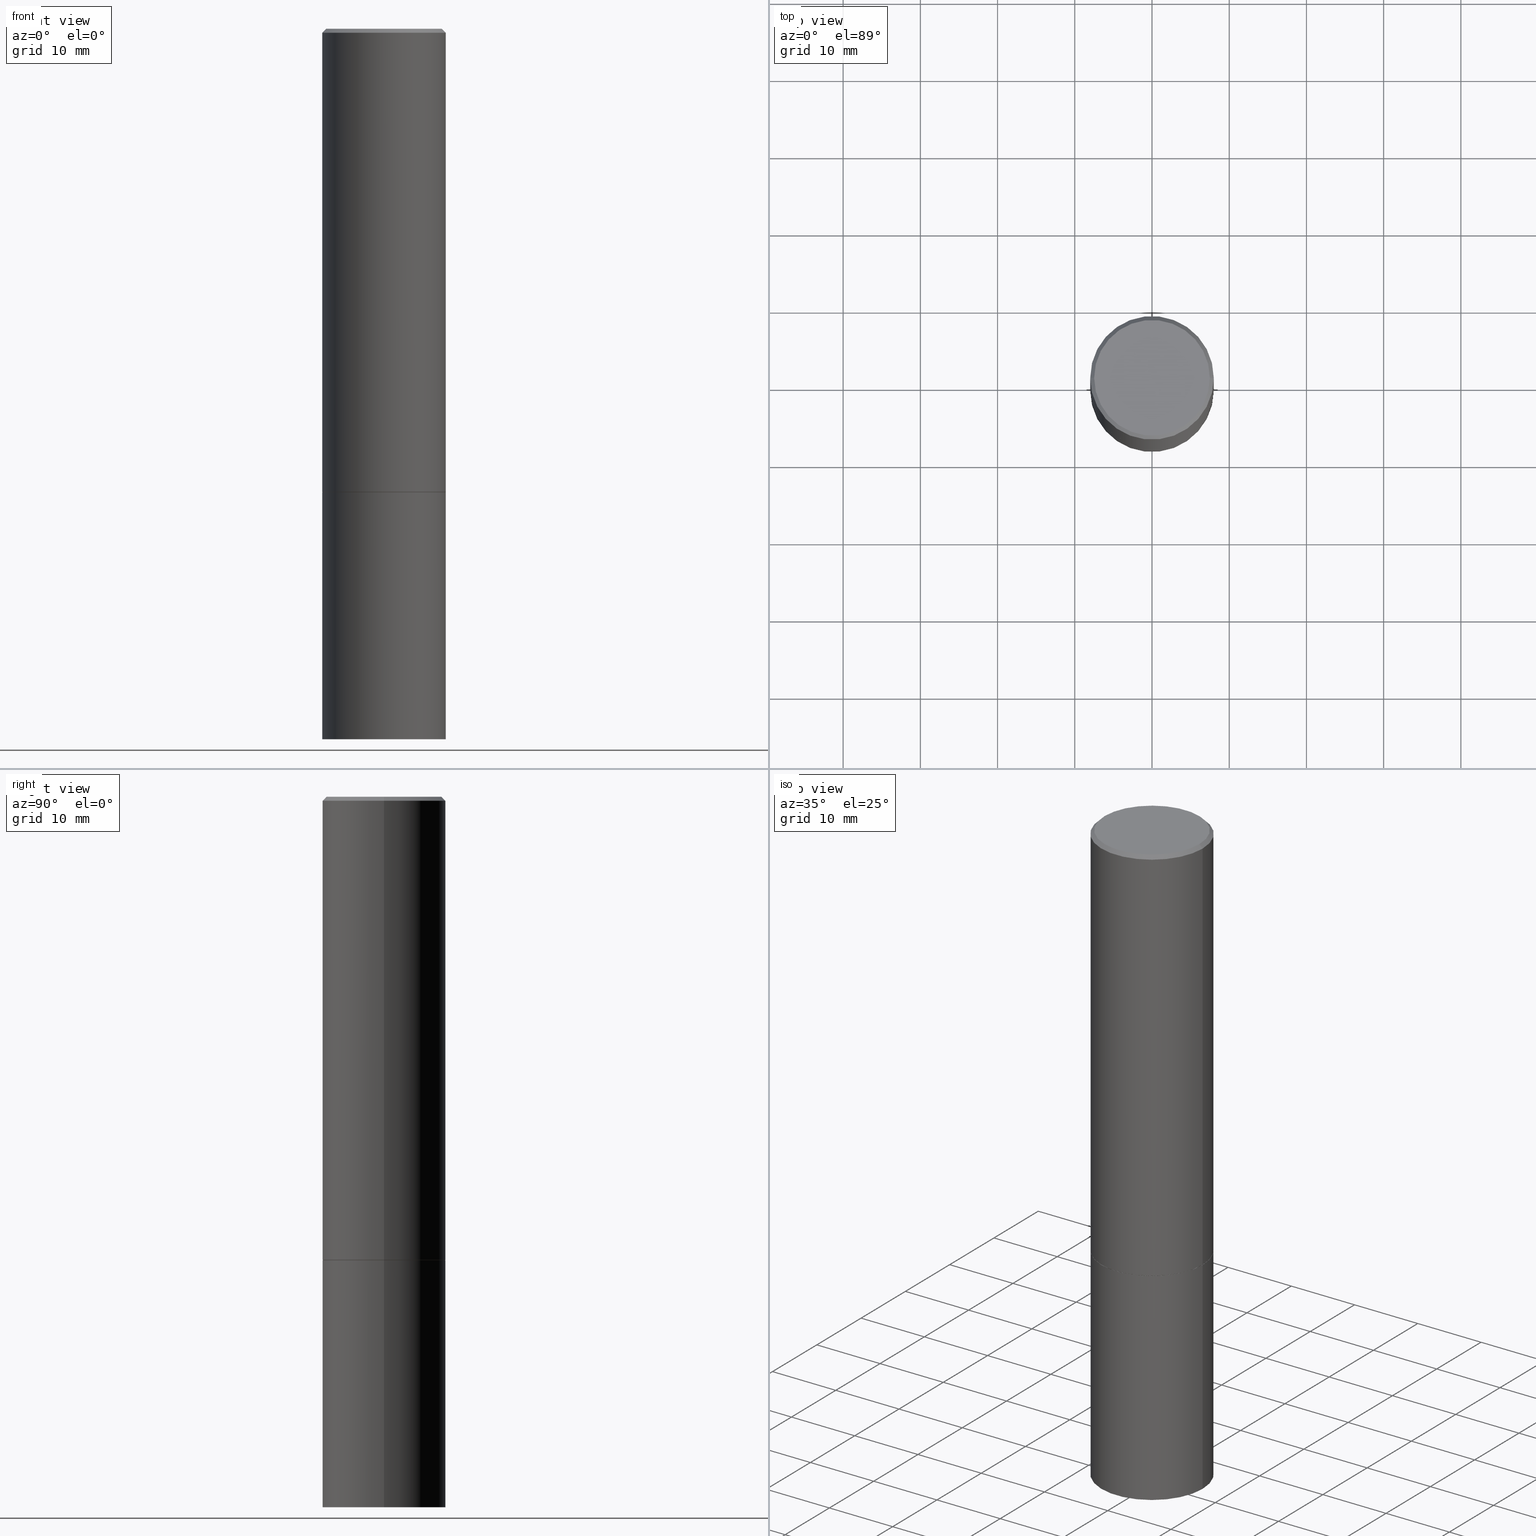
[diagram: canonical four-view strip — front | top / right | iso, engineering-drawing reading convention]
A machine part, canonical four-view strip (front | top / right | iso — engineering-drawing reading convention). The complete STEP part file that produces these views, byte-faithful:
ISO-10303-21;
HEADER;
FILE_DESCRIPTION (( 'STEP AP203' ),
    '1' );
FILE_NAME ('49671.STEP',
    '2024-02-29T01:01:01',
    ( '' ),
    ( '' ),
    'SwSTEP 2.0',
    'SolidWorks 2023',
    '' );
FILE_SCHEMA (( 'CONFIG_CONTROL_DESIGN' ));
ENDSEC;

DATA;
#1 = ORIENTED_EDGE ( 'NONE', *, *, #361, .T. ) ;
#2 = COORDINATED_UNIVERSAL_TIME_OFFSET ( 5, 0, .BEHIND. ) ;
#3 = VERTEX_POINT ( 'NONE', #155 ) ;
#4 = APPROVAL_ROLE ( '' ) ;
#5 = CARTESIAN_POINT ( 'NONE',  ( 5.774240945164344150E-29, -8.244085737276433464E-15, -2.361199999999999743 ) ) ;
#6 = VERTEX_POINT ( 'NONE', #11 ) ;
#7 = AXIS2_PLACEMENT_3D ( 'NONE', #168, #202, #135 ) ;
#8 = CONICAL_SURFACE ( 'NONE', #150, 0.3149499999999997302, 0.7853981633974471688 ) ;
#9 = EDGE_CURVE ( 'NONE', #113, #177, #158, .T. ) ;
#10 = ORIENTED_EDGE ( 'NONE', *, *, #241, .F. ) ;
#11 = CARTESIAN_POINT ( 'NONE',  ( 0.3149500000000000077, -1.044686131395256792E-14, -2.362199999999999633 ) ) ;
#12 = EDGE_LOOP ( 'NONE', ( #32, #320, #73, #10 ) ) ;
#13 = CONICAL_SURFACE ( 'NONE', #215, 0.3149499999999997302, 0.7853981633974471688 ) ;
#14 = CALENDAR_DATE ( 2024, 28, 2 ) ;
#15 = DIRECTION ( 'NONE',  ( -2.445468806185136597E-29, 3.491481338843145583E-15, 1.000000000000000000 ) ) ;
#16 = DATE_AND_TIME ( #14, #351 ) ;
#17 = CARTESIAN_POINT ( 'NONE',  ( 0.3139500000000000624, -1.043987835127488191E-14, -2.362199999999999633 ) ) ;
#18 = PLANE ( 'NONE',  #358 ) ;
#19 = DIRECTION ( 'NONE',  ( 2.445468806185136597E-29, -3.491481338843145583E-15, -1.000000000000000000 ) ) ;
#20 = AXIS2_PLACEMENT_3D ( 'NONE', #240, #94, #41 ) ;
#21 = CARTESIAN_POINT ( 'NONE',  ( 0.000000000000000000, 0.000000000000000000, 0.000000000000000000 ) ) ;
#22 = CARTESIAN_POINT ( 'NONE',  ( -0.3149499999999998967, 2.237854346276434801E-15, -1.549218606675782116E-29 ) ) ;
#23 = APPROVAL ( #366, 'UNSPECIFIED' ) ;
#24 = FACE_OUTER_BOUND ( 'NONE', #210, .T. ) ;
#25 = CIRCLE ( 'NONE', #314, 0.3149499999999997302 ) ;
#26 = DIRECTION ( 'NONE',  ( 2.438088387897960049E-29, -3.491481338843145188E-15, -1.000000000000000000 ) ) ;
#27 = EDGE_CURVE ( 'NONE', #316, #259, #249, .T. ) ;
#28 = EDGE_LOOP ( 'NONE', ( #209, #178, #350, #59 ) ) ;
#29 = COORDINATED_UNIVERSAL_TIME_OFFSET ( 5, 0, .BEHIND. ) ;
#30 = ORIENTED_EDGE ( 'NONE', *, *, #205, .T. ) ;
#31 = DATE_AND_TIME ( #236, #339 ) ;
#32 = ORIENTED_EDGE ( 'NONE', *, *, #173, .F. ) ;
#33 =( CONVERSION_BASED_UNIT ( 'INCH', #85 ) LENGTH_UNIT ( ) NAMED_UNIT ( #80 ) );
#34 = VERTEX_POINT ( 'NONE', #246 ) ;
#35 = APPROVAL_DATE_TIME ( #71, #263 ) ;
#36 = VERTEX_POINT ( 'NONE', #72 ) ;
#37 = VECTOR ( 'NONE', #184, 39.37007874015748143 ) ;
#38 = AXIS2_PLACEMENT_3D ( 'NONE', #110, #203, #317 ) ;
#39 = LINE ( 'NONE', #327, #297 ) ;
#40 = DATE_AND_TIME ( #353, #112 ) ;
#41 = DIRECTION ( 'NONE',  ( 1.000000000000000000, -6.982962677686268288E-15, 0.000000000000000000 ) ) ;
#42 = VERTEX_POINT ( 'NONE', #354 ) ;
#43 = PRODUCT_DEFINITION_FORMATION_WITH_SPECIFIED_SOURCE ( 'ANY', '', #322, .NOT_KNOWN. ) ;
#44 = PERSON_AND_ORGANIZATION ( #282, #243 ) ;
#45 = EDGE_LOOP ( 'NONE', ( #180, #329 ) ) ;
#46 = CARTESIAN_POINT ( 'NONE',  ( -1.043851414335219820E-46, 1.490343170380447200E-32, 4.268512490100411279E-18 ) ) ;
#47 = DIRECTION ( 'NONE',  ( -2.445468806185136877E-29, 3.491481338843145188E-15, 1.000000000000000000 ) ) ;
#48 = CIRCLE ( 'NONE', #226, 0.3149500000000000077 ) ;
#49 = AXIS2_PLACEMENT_3D ( 'NONE', #109, #229, #134 ) ;
#50 = DIRECTION ( 'NONE',  ( -1.000000000000000000, 6.982962677686265922E-15, -4.876176775795935793E-29 ) ) ;
#51 = CYLINDRICAL_SURFACE ( 'NONE', #49, 0.3149500000000000077 ) ;
#52 = EDGE_CURVE ( 'NONE', #36, #177, #195, .T. ) ;
#53 = LINE ( 'NONE', #165, #277 ) ;
#54 = CYLINDRICAL_SURFACE ( 'NONE', #141, 0.3149500000000000077 ) ;
#55 = APPLICATION_PROTOCOL_DEFINITION ( 'international standard', 'config_control_design', 1994, #260 ) ;
#56 = ORIENTED_EDGE ( 'NONE', *, *, #290, .T. ) ;
#57 = ORIENTED_EDGE ( 'NONE', *, *, #241, .T. ) ;
#58 =( NAMED_UNIT ( * ) SI_UNIT ( $, .STERADIAN. ) SOLID_ANGLE_UNIT ( ) );
#59 = ORIENTED_EDGE ( 'NONE', *, *, #52, .F. ) ;
#60 = APPROVAL_PERSON_ORGANIZATION ( #44, #145, #239 ) ;
#61 = FACE_OUTER_BOUND ( 'NONE', #88, .T. ) ;
#62 = MECHANICAL_CONTEXT ( 'NONE', #200, 'mechanical' ) ;
#63 = CALENDAR_DATE ( 2024, 28, 2 ) ;
#64 = DIRECTION ( 'NONE',  ( 1.000000000000000000, -6.982962677686263555E-15, 0.000000000000000000 ) ) ;
#65 = AXIS2_PLACEMENT_3D ( 'NONE', #104, #75, #161 ) ;
#66 = APPROVAL_DATE_TIME ( #16, #145 ) ;
#67 = VECTOR ( 'NONE', #360, 39.37007874015748143 ) ;
#68 = CARTESIAN_POINT ( 'NONE',  ( -0.3139500000000000624, -6.011529845348220670E-15, -2.362199999999999633 ) ) ;
#69 = PERSON_AND_ORGANIZATION_ROLE ( 'design_supplier' ) ;
#70 = CARTESIAN_POINT ( 'NONE',  ( -0.3149499999999997302, 2.129454468560424601E-15, -0.02000000000000007327 ) ) ;
#71 = DATE_AND_TIME ( #63, #176 ) ;
#72 = CARTESIAN_POINT ( 'NONE',  ( -0.3149500000000000077, -1.919103335750211213E-15, -2.361199999999999743 ) ) ;
#73 = ORIENTED_EDGE ( 'NONE', *, *, #295, .T. ) ;
#74 = EDGE_CURVE ( 'NONE', #86, #3, #101, .T. ) ;
#75 = DIRECTION ( 'NONE',  ( -2.445468806185136597E-29, 3.491481338843145583E-15, 1.000000000000000000 ) ) ;
#76 = DIRECTION ( 'NONE',  ( 1.000000000000000000, -6.982962677686268288E-15, 0.000000000000000000 ) ) ;
#77 = AXIS2_PLACEMENT_3D ( 'NONE', #283, #332, #253 ) ;
#78 = DIRECTION ( 'NONE',  ( 2.438088387897960049E-29, -3.491481338843145188E-15, -1.000000000000000000 ) ) ;
#79 = DIRECTION ( 'NONE',  ( -2.445468806185136597E-29, 3.491481338843145583E-15, 1.000000000000000000 ) ) ;
#80 = DIMENSIONAL_EXPONENTS ( 1.000000000000000000, 0.000000000000000000, 0.000000000000000000, 0.000000000000000000, 0.000000000000000000, 0.000000000000000000, 0.000000000000000000 ) ;
#81 = CARTESIAN_POINT ( 'NONE',  ( -0.3149500000000000077, -8.209006967676139823E-15, -3.621999999999999886 ) ) ;
#82 = EDGE_CURVE ( 'NONE', #144, #3, #39, .T. ) ;
#83 = AXIS2_PLACEMENT_3D ( 'NONE', #328, #182, #219 ) ;
#84 = UNCERTAINTY_MEASURE_WITH_UNIT (LENGTH_MEASURE( 1.000000000000000082E-05 ), #33, 'distance_accuracy_value', 'NONE');
#85 = LENGTH_MEASURE_WITH_UNIT ( LENGTH_MEASURE( 0.02539999999999999897 ), #206 );
#86 = VERTEX_POINT ( 'NONE', #70 ) ;
#87 = DIRECTION ( 'NONE',  ( 0.000000000000000000, 0.000000000000000000, 1.000000000000000000 ) ) ;
#88 = EDGE_LOOP ( 'NONE', ( #235, #262, #301, #324 ) ) ;
#89 = CARTESIAN_POINT ( 'NONE',  ( 2.199284095337347063E-15, 0.3149499999999917366, -2.362200000000000966 ) ) ;
#90 = CC_DESIGN_DATE_AND_TIME_ASSIGNMENT ( #31, #140, ( #156 ) ) ;
#91 = ORIENTED_EDGE ( 'NONE', *, *, #142, .F. ) ;
#92 = CIRCLE ( 'NONE', #38, 0.2949499999999997124 ) ;
#93 = ORIENTED_EDGE ( 'NONE', *, *, #224, .F. ) ;
#94 = DIRECTION ( 'NONE',  ( -2.445468806185136597E-29, 3.491481338843145583E-15, 1.000000000000000000 ) ) ;
#95 = LOCAL_TIME ( 20, 1, 1.000000000000000000, #2 ) ;
#96 = ADVANCED_BREP_SHAPE_REPRESENTATION ( '49671', ( #313, #191, #284 ), #335 ) ;
#97 = DIRECTION ( 'NONE',  ( -2.445468806185136597E-29, 3.491481338843145583E-15, 1.000000000000000000 ) ) ;
#98 = DIRECTION ( 'NONE',  ( -2.445468806185136597E-29, 3.491481338843145583E-15, 1.000000000000000000 ) ) ;
#99 = COORDINATED_UNIVERSAL_TIME_OFFSET ( 5, 0, .BEHIND. ) ;
#100 = FACE_OUTER_BOUND ( 'NONE', #288, .T. ) ;
#101 = CIRCLE ( 'NONE', #131, 0.3149499999999997302 ) ;
#102 = VECTOR ( 'NONE', #311, 39.37007874015748143 ) ;
#103 = CARTESIAN_POINT ( 'NONE',  ( 4.890937612370290675E-31, -6.982962677686316261E-17, -0.02000000000000007327 ) ) ;
#104 = CARTESIAN_POINT ( 'NONE',  ( 5.776686413970529753E-29, -8.247577218615278049E-15, -2.362199999999999633 ) ) ;
#105 = EDGE_CURVE ( 'NONE', #3, #86, #25, .T. ) ;
#106 = FACE_OUTER_BOUND ( 'NONE', #120, .T. ) ;
#107 = APPROVAL_PERSON_ORGANIZATION ( #172, #23, #261 ) ;
#108 = DIRECTION ( 'NONE',  ( -2.445468806185136597E-29, 3.491481338843145583E-15, 1.000000000000000000 ) ) ;
#109 = CARTESIAN_POINT ( 'NONE',  ( 0.000000000000000000, 0.000000000000000000, 0.000000000000000000 ) ) ;
#110 = CARTESIAN_POINT ( 'NONE',  ( -1.043851414335219820E-46, 1.490343170380447200E-32, 4.268512490100411279E-18 ) ) ;
#111 = PERSON_AND_ORGANIZATION_ROLE ( 'creator' ) ;
#112 = LOCAL_TIME ( 20, 1, 1.000000000000000000, #99 ) ;
#113 = VERTEX_POINT ( 'NONE', #218 ) ;
#114 = AXIS2_PLACEMENT_3D ( 'NONE', #192, #108, #76 ) ;
#115 = DESIGN_CONTEXT ( 'detailed design', #260, 'design' ) ;
#116 = DIRECTION ( 'NONE',  ( 2.445468806185136597E-29, -3.491481338843145583E-15, -1.000000000000000000 ) ) ;
#117 = EDGE_LOOP ( 'NONE', ( #56, #57 ) ) ;
#118 = ADVANCED_FACE ( 'NONE', ( #100 ), #151, .T. ) ;
#119 = ORIENTED_EDGE ( 'NONE', *, *, #82, .T. ) ;
#120 = EDGE_LOOP ( 'NONE', ( #267, #174, #293, #318 ) ) ;
#121 = SHAPE_DEFINITION_REPRESENTATION ( #147, #96 ) ;
#122 = ORIENTED_EDGE ( 'NONE', *, *, #142, .T. ) ;
#123 = APPROVAL_STATUS ( 'not_yet_approved' ) ;
#124 = ORIENTED_EDGE ( 'NONE', *, *, #193, .F. ) ;
#125 = EDGE_CURVE ( 'NONE', #144, #34, #163, .T. ) ;
#126 = LINE ( 'NONE', #22, #67 ) ;
#127 = EDGE_CURVE ( 'NONE', #34, #86, #152, .T. ) ;
#128 = DIRECTION ( 'NONE',  ( 1.000000000000000000, -6.982962677686263555E-15, 0.000000000000000000 ) ) ;
#129 = CARTESIAN_POINT ( 'NONE',  ( 8.857488016002564476E-29, -1.264614540928987199E-14, -3.621999999999999886 ) ) ;
#130 = DIRECTION ( 'NONE',  ( -2.445468806185136597E-29, 3.491481338843145583E-15, 1.000000000000000000 ) ) ;
#131 = AXIS2_PLACEMENT_3D ( 'NONE', #245, #98, #298 ) ;
#132 = APPROVAL_PERSON_ORGANIZATION ( #258, #263, #4 ) ;
#133 = CIRCLE ( 'NONE', #20, 0.3139500000000000624 ) ;
#134 = DIRECTION ( 'NONE',  ( 1.000000000000000000, -6.982962677686266711E-15, 4.876176775795936353E-29 ) ) ;
#135 = DIRECTION ( 'NONE',  ( 1.000000000000000000, -6.982962677686263555E-15, 0.000000000000000000 ) ) ;
#136 = CARTESIAN_POINT ( 'NONE',  ( -0.3139500000000000624, -6.016828299696443072E-15, -2.362199999999999633 ) ) ;
#137 = FACE_OUTER_BOUND ( 'NONE', #347, .T. ) ;
#138 = ADVANCED_FACE ( 'NONE', ( #271 ), #18, .F. ) ;
#139 = ORIENTED_EDGE ( 'NONE', *, *, #361, .F. ) ;
#140 = DATE_TIME_ROLE ( 'creation_date' ) ;
#141 = AXIS2_PLACEMENT_3D ( 'NONE', #286, #130, #250 ) ;
#142 = EDGE_CURVE ( 'NONE', #113, #149, #133, .T. ) ;
#143 = APPROVAL_STATUS ( 'not_yet_approved' ) ;
#144 = VERTEX_POINT ( 'NONE', #325 ) ;
#145 = APPROVAL ( #123, 'UNSPECIFIED' ) ;
#146 =( NAMED_UNIT ( * ) PLANE_ANGLE_UNIT ( ) SI_UNIT ( $, .RADIAN. ) );
#147 = PRODUCT_DEFINITION_SHAPE ( 'NONE', 'NONE',  #156 ) ;
#148 = CLOSED_SHELL ( 'NONE', ( #118, #198, #233, #333, #331, #221, #186, #138 ) ) ;
#149 = VERTEX_POINT ( 'NONE', #68 ) ;
#150 = AXIS2_PLACEMENT_3D ( 'NONE', #179, #116, #323 ) ;
#151 = CONICAL_SURFACE ( 'NONE', #83, 0.3139500000000000624, 0.7853981633973801113 ) ;
#152 = LINE ( 'NONE', #160, #37 ) ;
#153 = PERSON_AND_ORGANIZATION ( #282, #243 ) ;
#154 = ORIENTED_EDGE ( 'NONE', *, *, #162, .F. ) ;
#155 = CARTESIAN_POINT ( 'NONE',  ( 0.3149499999999997302, -2.230543471175005478E-15, -0.02000000000000007327 ) ) ;
#156 = PRODUCT_DEFINITION ( 'UNKNOWN', '', #43, #115 ) ;
#157 = COORDINATED_UNIVERSAL_TIME_OFFSET ( 5, 0, .BEHIND. ) ;
#158 = LINE ( 'NONE', #17, #268 ) ;
#159 = PRODUCT_RELATED_PRODUCT_CATEGORY ( 'detail', '', ( #322 ) ) ;
#160 = CARTESIAN_POINT ( 'NONE',  ( -0.3149499999999997302, 2.129454468560424601E-15, -0.02000000000000007327 ) ) ;
#161 = DIRECTION ( 'NONE',  ( 1.000000000000000000, -6.982962677686268288E-15, 0.000000000000000000 ) ) ;
#162 = EDGE_CURVE ( 'NONE', #36, #86, #126, .T. ) ;
#163 = CIRCLE ( 'NONE', #183, 0.2949499999999997124 ) ;
#164 = AXIS2_PLACEMENT_3D ( 'NONE', #364, #167, #280 ) ;
#165 = CARTESIAN_POINT ( 'NONE',  ( -0.3149500000000000077, 2.237854346276435590E-15, -1.549218606675782676E-29 ) ) ;
#166 = EDGE_CURVE ( 'NONE', #149, #113, #279, .T. ) ;
#167 = DIRECTION ( 'NONE',  ( -2.438088387897960049E-29, 3.491481338843145188E-15, 1.000000000000000000 ) ) ;
#168 = CARTESIAN_POINT ( 'NONE',  ( 8.857488016002564476E-29, -1.264614540928987199E-14, -3.621999999999999886 ) ) ;
#169 = DIRECTION ( 'NONE',  ( -0.7071067811864992780, 7.493145998870180611E-15, 0.7071067811865957564 ) ) ;
#170 = CALENDAR_DATE ( 2024, 28, 2 ) ;
#171 = EDGE_LOOP ( 'NONE', ( #341, #119, #214, #212 ) ) ;
#172 = PERSON_AND_ORGANIZATION ( #282, #243 ) ;
#173 = EDGE_CURVE ( 'NONE', #259, #42, #53, .T. ) ;
#174 = ORIENTED_EDGE ( 'NONE', *, *, #173, .T. ) ;
#175 = DIRECTION ( 'NONE',  ( -2.445468806185136597E-29, 3.491481338843145583E-15, 1.000000000000000000 ) ) ;
#176 = LOCAL_TIME ( 20, 1, 1.000000000000000000, #216 ) ;
#177 = VERTEX_POINT ( 'NONE', #227 ) ;
#178 = ORIENTED_EDGE ( 'NONE', *, *, #166, .T. ) ;
#179 = CARTESIAN_POINT ( 'NONE',  ( 4.890937612370290675E-31, -6.982962677686316261E-17, -0.02000000000000007327 ) ) ;
#180 = ORIENTED_EDGE ( 'NONE', *, *, #348, .T. ) ;
#181 = AXIS2_PLACEMENT_3D ( 'NONE', #352, #303, #128 ) ;
#182 = DIRECTION ( 'NONE',  ( -2.445468806185136597E-29, 3.491481338843145583E-15, 1.000000000000000000 ) ) ;
#183 = AXIS2_PLACEMENT_3D ( 'NONE', #46, #97, #296 ) ;
#184 = DIRECTION ( 'NONE',  ( -0.7071067811865466846, 2.468850131082247989E-15, -0.7071067811865483499 ) ) ;
#185 = ORIENTED_EDGE ( 'NONE', *, *, #74, .F. ) ;
#186 = ADVANCED_FACE ( 'NONE', ( #137 ), #281, .F. ) ;
#187 = DATE_TIME_ROLE ( 'classification_date' ) ;
#188 = EDGE_LOOP ( 'NONE', ( #154, #207, #232, #185 ) ) ;
#189 = CC_DESIGN_APPROVAL ( #263, ( #43 ) ) ;
#190 = DIRECTION ( 'NONE',  ( 1.000000000000000000, -6.982962677686266711E-15, 0.000000000000000000 ) ) ;
#191 = MANIFOLD_SOLID_BREP ( 'Body-Move/Copy2[2]', #148 ) ;
#192 = CARTESIAN_POINT ( 'NONE',  ( 5.776686413970529753E-29, -8.247577218615278049E-15, -2.362199999999999633 ) ) ;
#193 = EDGE_CURVE ( 'NONE', #259, #316, #213, .T. ) ;
#194 = FACE_OUTER_BOUND ( 'NONE', #12, .T. ) ;
#195 = CIRCLE ( 'NONE', #181, 0.3149500000000000077 ) ;
#196 = AXIS2_PLACEMENT_3D ( 'NONE', #234, #340, #343 ) ;
#197 = FACE_OUTER_BOUND ( 'NONE', #171, .T. ) ;
#198 = ADVANCED_FACE ( 'NONE', ( #304 ), #334, .T. ) ;
#199 = LINE ( 'NONE', #136, #265 ) ;
#200 = APPLICATION_CONTEXT ( 'configuration controlled 3d designs of mechanical parts and assemblies' ) ;
#201 = CC_DESIGN_PERSON_AND_ORGANIZATION_ASSIGNMENT ( #326, #244, ( #43 ) ) ;
#202 = DIRECTION ( 'NONE',  ( -2.445468806185136597E-29, 3.491481338843145583E-15, 1.000000000000000000 ) ) ;
#203 = DIRECTION ( 'NONE',  ( -2.445468806185136597E-29, 3.491481338843145583E-15, 1.000000000000000000 ) ) ;
#204 = ORIENTED_EDGE ( 'NONE', *, *, #105, .F. ) ;
#205 = EDGE_CURVE ( 'NONE', #149, #36, #199, .T. ) ;
#206 =( LENGTH_UNIT ( ) NAMED_UNIT ( * ) SI_UNIT ( $, .METRE. ) );
#207 = ORIENTED_EDGE ( 'NONE', *, *, #52, .T. ) ;
#208 = ADVANCED_FACE ( 'NONE', ( #24 ), #252, .T. ) ;
#209 = ORIENTED_EDGE ( 'NONE', *, *, #205, .F. ) ;
#210 = EDGE_LOOP ( 'NONE', ( #256, #124 ) ) ;
#211 = FACE_OUTER_BOUND ( 'NONE', #117, .T. ) ;
#212 = ORIENTED_EDGE ( 'NONE', *, *, #127, .F. ) ;
#213 = CIRCLE ( 'NONE', #7, 0.3149500000000000077 ) ;
#214 = ORIENTED_EDGE ( 'NONE', *, *, #105, .T. ) ;
#215 = AXIS2_PLACEMENT_3D ( 'NONE', #103, #19, #308 ) ;
#216 = COORDINATED_UNIVERSAL_TIME_OFFSET ( 5, 0, .BEHIND. ) ;
#217 = DIRECTION ( 'NONE',  ( -1.000000000000000000, 6.982962677686265922E-15, -4.876176775795935793E-29 ) ) ;
#218 = CARTESIAN_POINT ( 'NONE',  ( 0.3139500000000000624, -1.043987835127488191E-14, -2.362199999999999633 ) ) ;
#219 = DIRECTION ( 'NONE',  ( 1.000000000000000000, -6.982962677686268288E-15, 0.000000000000000000 ) ) ;
#220 = CC_DESIGN_APPROVAL ( #145, ( #300 ) ) ;
#221 = ADVANCED_FACE ( 'NONE', ( #363 ), #231, .T. ) ;
#222 = CYLINDRICAL_SURFACE ( 'NONE', #196, 0.3149499999999998967 ) ;
#223 = CARTESIAN_POINT ( 'NONE',  ( 0.3149500000000000077, -2.199284095337289871E-15, 1.535751875536930130E-29 ) ) ;
#224 = EDGE_CURVE ( 'NONE', #177, #3, #251, .T. ) ;
#225 = CARTESIAN_POINT ( 'NONE',  ( 5.776686413970529753E-29, -8.247577218615278049E-15, -2.362199999999999633 ) ) ;
#226 = AXIS2_PLACEMENT_3D ( 'NONE', #225, #305, #310 ) ;
#227 = CARTESIAN_POINT ( 'NONE',  ( 0.3149500000000000077, -1.044336983261372333E-14, -2.361199999999999743 ) ) ;
#228 = CC_DESIGN_PERSON_AND_ORGANIZATION_ASSIGNMENT ( #338, #254, ( #322 ) ) ;
#229 = DIRECTION ( 'NONE',  ( -2.445468806185136597E-29, 3.491481338843145583E-15, 1.000000000000000000 ) ) ;
#230 = CC_DESIGN_DATE_AND_TIME_ASSIGNMENT ( #40, #187, ( #300 ) ) ;
#231 = CONICAL_SURFACE ( 'NONE', #65, 0.3139500000000000624, 0.7853981633973801113 ) ;
#232 = ORIENTED_EDGE ( 'NONE', *, *, #224, .T. ) ;
#233 = ADVANCED_FACE ( 'NONE', ( #197 ), #13, .T. ) ;
#234 = CARTESIAN_POINT ( 'NONE',  ( 0.000000000000000000, 0.000000000000000000, 0.000000000000000000 ) ) ;
#235 = ORIENTED_EDGE ( 'NONE', *, *, #82, .F. ) ;
#236 = CALENDAR_DATE ( 2024, 28, 2 ) ;
#237 = DIRECTION ( 'NONE',  ( 1.000000000000000000, 0.000000000000000000, 0.000000000000000000 ) ) ;
#238 = DIRECTION ( 'NONE',  ( 2.438088387897960049E-29, -3.491481338843145188E-15, -1.000000000000000000 ) ) ;
#239 = APPROVAL_ROLE ( '' ) ;
#240 = CARTESIAN_POINT ( 'NONE',  ( 5.776686413970529753E-29, -8.247577218615278049E-15, -2.362199999999999633 ) ) ;
#241 = EDGE_CURVE ( 'NONE', #42, #6, #48, .T. ) ;
#242 = ORIENTED_EDGE ( 'NONE', *, *, #162, .T. ) ;
#243 = ORGANIZATION ( 'UNSPECIFIED', 'UNSPECIFIED', '' ) ;
#244 = PERSON_AND_ORGANIZATION_ROLE ( 'creator' ) ;
#245 = CARTESIAN_POINT ( 'NONE',  ( 4.890937612370290675E-31, -6.982962677686316261E-17, -0.02000000000000007327 ) ) ;
#246 = CARTESIAN_POINT ( 'NONE',  ( -0.2949499999999997124, 2.094539655171993740E-15, 4.268512490085885145E-18 ) ) ;
#247 = CARTESIAN_POINT ( 'NONE',  ( 0.3149500000000000077, -1.484542950462716186E-14, -3.621999999999999886 ) ) ;
#248 = AXIS2_PLACEMENT_3D ( 'NONE', #362, #78, #50 ) ;
#249 = CIRCLE ( 'NONE', #307, 0.3149500000000000077 ) ;
#250 = DIRECTION ( 'NONE',  ( 1.000000000000000000, -6.982962677686266711E-15, 4.876176775795936353E-29 ) ) ;
#251 = LINE ( 'NONE', #330, #294 ) ;
#252 = PLANE ( 'NONE',  #248 ) ;
#253 = DIRECTION ( 'NONE',  ( 1.000000000000000000, -6.982962677686266711E-15, 0.000000000000000000 ) ) ;
#254 = PERSON_AND_ORGANIZATION_ROLE ( 'design_owner' ) ;
#255 = PERSON_AND_ORGANIZATION ( #282, #243 ) ;
#256 = ORIENTED_EDGE ( 'NONE', *, *, #27, .F. ) ;
#257 = AXIS2_PLACEMENT_3D ( 'NONE', #5, #175, #264 ) ;
#258 = PERSON_AND_ORGANIZATION ( #282, #243 ) ;
#259 = VERTEX_POINT ( 'NONE', #81 ) ;
#260 = APPLICATION_CONTEXT ( 'configuration controlled 3d designs of mechanical parts and assemblies' ) ;
#261 = APPROVAL_ROLE ( '' ) ;
#262 = ORIENTED_EDGE ( 'NONE', *, *, #348, .F. ) ;
#263 = APPROVAL ( #143, 'UNSPECIFIED' ) ;
#264 = DIRECTION ( 'NONE',  ( 1.000000000000000000, -6.982962677686263555E-15, 0.000000000000000000 ) ) ;
#265 = VECTOR ( 'NONE', #169, 39.37007874015748143 ) ;
#266 = AXIS2_PLACEMENT_3D ( 'NONE', #89, #26, #315 ) ;
#267 = ORIENTED_EDGE ( 'NONE', *, *, #27, .T. ) ;
#268 = VECTOR ( 'NONE', #273, 39.37007874015748143 ) ;
#269 = PERSON_AND_ORGANIZATION_ROLE ( 'classification_officer' ) ;
#270 = DIRECTION ( 'NONE',  ( 0.7071067811865466846, -7.319954787623252890E-15, -0.7071067811865483499 ) ) ;
#271 = FACE_OUTER_BOUND ( 'NONE', #45, .T. ) ;
#272 = CC_DESIGN_SECURITY_CLASSIFICATION ( #300, ( #43 ) ) ;
#273 = DIRECTION ( 'NONE',  ( 0.7071067811864992780, -2.468850131081751401E-15, 0.7071067811865957564 ) ) ;
#274 = ORIENTED_EDGE ( 'NONE', *, *, #9, .F. ) ;
#275 = CARTESIAN_POINT ( 'NONE',  ( 2.059624841783562091E-15, 0.2949499999999997124, -1.027678164646734579E-15 ) ) ;
#276 = DIRECTION ( 'NONE',  ( 1.000000000000000000, -6.982962677686265922E-15, 4.876176775795935232E-29 ) ) ;
#277 = VECTOR ( 'NONE', #47, 39.37007874015748143 ) ;
#278 = CC_DESIGN_APPROVAL ( #23, ( #156 ) ) ;
#279 = CIRCLE ( 'NONE', #114, 0.3139500000000000624 ) ;
#280 = DIRECTION ( 'NONE',  ( 1.000000000000000000, -6.982962677686265922E-15, 4.876176775795935793E-29 ) ) ;
#281 = PLANE ( 'NONE',  #164 ) ;
#282 = PERSON ( 'UNSPECIFIED', 'UNSPECIFIED', 'UNSPECIFIED', ('UNSPECIFIED'), ('UNSPECIFIED'), ('UNSPECIFIED') ) ;
#283 = CARTESIAN_POINT ( 'NONE',  ( 5.776686413970529753E-29, -8.247577218615278049E-15, -2.362199999999999633 ) ) ;
#284 = AXIS2_PLACEMENT_3D ( 'NONE', #289, #87, #237 ) ;
#285 = CLOSED_SHELL ( 'NONE', ( #292, #208, #359, #306 ) ) ;
#286 = CARTESIAN_POINT ( 'NONE',  ( 0.000000000000000000, 0.000000000000000000, 0.000000000000000000 ) ) ;
#287 = APPROVAL_DATE_TIME ( #319, #23 ) ;
#288 = EDGE_LOOP ( 'NONE', ( #122, #30, #139, #274 ) ) ;
#289 = CARTESIAN_POINT ( 'NONE',  ( 0.000000000000000000, 0.000000000000000000, 0.000000000000000000 ) ) ;
#290 = EDGE_CURVE ( 'NONE', #6, #42, #345, .T. ) ;
#291 = CIRCLE ( 'NONE', #257, 0.3149500000000000077 ) ;
#292 = ADVANCED_FACE ( 'NONE', ( #106 ), #51, .T. ) ;
#293 = ORIENTED_EDGE ( 'NONE', *, *, #290, .F. ) ;
#294 = VECTOR ( 'NONE', #336, 39.37007874015748143 ) ;
#295 = EDGE_CURVE ( 'NONE', #316, #6, #337, .T. ) ;
#296 = DIRECTION ( 'NONE',  ( 1.000000000000000000, -6.982962677686267499E-15, 4.876053491004739391E-29 ) ) ;
#297 = VECTOR ( 'NONE', #270, 39.37007874015748143 ) ;
#298 = DIRECTION ( 'NONE',  ( 1.000000000000000000, -6.982962677686266711E-15, 0.000000000000000000 ) ) ;
#299 = DIRECTION ( 'NONE',  ( -2.445468806185136597E-29, 3.491481338843145583E-15, 1.000000000000000000 ) ) ;
#300 = SECURITY_CLASSIFICATION ( '', '', #355 ) ;
#301 = ORIENTED_EDGE ( 'NONE', *, *, #127, .T. ) ;
#302 = CC_DESIGN_PERSON_AND_ORGANIZATION_ASSIGNMENT ( #153, #269, ( #300 ) ) ;
#303 = DIRECTION ( 'NONE',  ( -2.445468806185136597E-29, 3.491481338843145583E-15, 1.000000000000000000 ) ) ;
#304 = FACE_OUTER_BOUND ( 'NONE', #344, .T. ) ;
#305 = DIRECTION ( 'NONE',  ( -2.445468806185136597E-29, 3.491481338843145583E-15, 1.000000000000000000 ) ) ;
#306 = ADVANCED_FACE ( 'NONE', ( #194 ), #54, .T. ) ;
#307 = AXIS2_PLACEMENT_3D ( 'NONE', #129, #15, #64 ) ;
#308 = DIRECTION ( 'NONE',  ( -1.000000000000000000, 6.982962677686266711E-15, 0.000000000000000000 ) ) ;
#309 = CC_DESIGN_PERSON_AND_ORGANIZATION_ASSIGNMENT ( #255, #111, ( #156 ) ) ;
#310 = DIRECTION ( 'NONE',  ( 1.000000000000000000, -6.982962677686266711E-15, 0.000000000000000000 ) ) ;
#311 = DIRECTION ( 'NONE',  ( -2.445468806185136877E-29, 3.491481338843145188E-15, 1.000000000000000000 ) ) ;
#312 = AXIS2_PLACEMENT_3D ( 'NONE', #21, #79, #276 ) ;
#313 = MANIFOLD_SOLID_BREP ( 'Body-Move/Copy2[1]', #285 ) ;
#314 = AXIS2_PLACEMENT_3D ( 'NONE', #356, #299, #190 ) ;
#315 = DIRECTION ( 'NONE',  ( -1.000000000000000000, 6.982962677686265922E-15, -4.876176775795935793E-29 ) ) ;
#316 = VERTEX_POINT ( 'NONE', #247 ) ;
#317 = DIRECTION ( 'NONE',  ( 1.000000000000000000, -6.982962677686267499E-15, 4.876053491004739391E-29 ) ) ;
#318 = ORIENTED_EDGE ( 'NONE', *, *, #295, .F. ) ;
#319 = DATE_AND_TIME ( #170, #95 ) ;
#320 = ORIENTED_EDGE ( 'NONE', *, *, #193, .T. ) ;
#321 = PLANE ( 'NONE',  #266 ) ;
#322 = PRODUCT ( '49671', '49671', '', ( #62 ) ) ;
#323 = DIRECTION ( 'NONE',  ( -1.000000000000000000, 6.982962677686266711E-15, 0.000000000000000000 ) ) ;
#324 = ORIENTED_EDGE ( 'NONE', *, *, #74, .T. ) ;
#325 = CARTESIAN_POINT ( 'NONE',  ( 0.2949499999999997124, -2.127023677808858103E-15, 4.268512490115050658E-18 ) ) ;
#326 = PERSON_AND_ORGANIZATION ( #282, #243 ) ;
#327 = CARTESIAN_POINT ( 'NONE',  ( 0.3149499999999997302, -2.230543471175005478E-15, -0.02000000000000007327 ) ) ;
#328 = CARTESIAN_POINT ( 'NONE',  ( 5.776686413970529753E-29, -8.247577218615278049E-15, -2.362199999999999633 ) ) ;
#329 = ORIENTED_EDGE ( 'NONE', *, *, #125, .T. ) ;
#330 = CARTESIAN_POINT ( 'NONE',  ( 0.3149499999999998967, -2.199284095337288688E-15, 1.535751875536929289E-29 ) ) ;
#331 = ADVANCED_FACE ( 'NONE', ( #357 ), #222, .T. ) ;
#332 = DIRECTION ( 'NONE',  ( -2.445468806185136597E-29, 3.491481338843145583E-15, 1.000000000000000000 ) ) ;
#333 = ADVANCED_FACE ( 'NONE', ( #61 ), #8, .T. ) ;
#334 = CYLINDRICAL_SURFACE ( 'NONE', #312, 0.3149499999999998967 ) ;
#335 =( GEOMETRIC_REPRESENTATION_CONTEXT ( 3 ) GLOBAL_UNCERTAINTY_ASSIGNED_CONTEXT ( ( #84 ) ) GLOBAL_UNIT_ASSIGNED_CONTEXT ( ( #33, #146, #58 ) ) REPRESENTATION_CONTEXT ( 'NONE', 'WORKASPACE' ) );
#336 = DIRECTION ( 'NONE',  ( -2.445468806185136877E-29, 3.491481338843145188E-15, 1.000000000000000000 ) ) ;
#337 = LINE ( 'NONE', #223, #102 ) ;
#338 = PERSON_AND_ORGANIZATION ( #282, #243 ) ;
#339 = LOCAL_TIME ( 20, 1, 1.000000000000000000, #29 ) ;
#340 = DIRECTION ( 'NONE',  ( -2.445468806185136597E-29, 3.491481338843145583E-15, 1.000000000000000000 ) ) ;
#341 = ORIENTED_EDGE ( 'NONE', *, *, #125, .F. ) ;
#342 = ORIENTED_EDGE ( 'NONE', *, *, #166, .F. ) ;
#343 = DIRECTION ( 'NONE',  ( 1.000000000000000000, -6.982962677686265922E-15, 4.876176775795935232E-29 ) ) ;
#344 = EDGE_LOOP ( 'NONE', ( #1, #242, #204, #93 ) ) ;
#345 = CIRCLE ( 'NONE', #77, 0.3149500000000000077 ) ;
#346 = APPLICATION_PROTOCOL_DEFINITION ( 'international standard', 'config_control_design', 1994, #200 ) ;
#347 = EDGE_LOOP ( 'NONE', ( #91, #342 ) ) ;
#348 = EDGE_CURVE ( 'NONE', #34, #144, #92, .T. ) ;
#349 = PERSON_AND_ORGANIZATION ( #282, #243 ) ;
#350 = ORIENTED_EDGE ( 'NONE', *, *, #9, .T. ) ;
#351 = LOCAL_TIME ( 20, 1, 1.000000000000000000, #157 ) ;
#352 = CARTESIAN_POINT ( 'NONE',  ( 5.774240945164344150E-29, -8.244085737276433464E-15, -2.361199999999999743 ) ) ;
#353 = CALENDAR_DATE ( 2024, 28, 2 ) ;
#354 = CARTESIAN_POINT ( 'NONE',  ( -0.3149500000000000077, -8.209006967676139823E-15, -2.362199999999999633 ) ) ;
#355 = SECURITY_CLASSIFICATION_LEVEL ( 'unclassified' ) ;
#356 = CARTESIAN_POINT ( 'NONE',  ( 4.890937612370290675E-31, -6.982962677686316261E-17, -0.02000000000000007327 ) ) ;
#357 = FACE_OUTER_BOUND ( 'NONE', #188, .T. ) ;
#358 = AXIS2_PLACEMENT_3D ( 'NONE', #275, #238, #217 ) ;
#359 = ADVANCED_FACE ( 'NONE', ( #211 ), #321, .F. ) ;
#360 = DIRECTION ( 'NONE',  ( -2.445468806185136877E-29, 3.491481338843145188E-15, 1.000000000000000000 ) ) ;
#361 = EDGE_CURVE ( 'NONE', #177, #36, #291, .T. ) ;
#362 = CARTESIAN_POINT ( 'NONE',  ( 2.199284095337378223E-15, 0.3149499999999873512, -3.622000000000000774 ) ) ;
#363 = FACE_OUTER_BOUND ( 'NONE', #28, .T. ) ;
#364 = CARTESIAN_POINT ( 'NONE',  ( 5.776686413970529753E-29, -8.247577218615278049E-15, -2.362199999999999633 ) ) ;
#365 = CC_DESIGN_PERSON_AND_ORGANIZATION_ASSIGNMENT ( #349, #69, ( #43 ) ) ;
#366 = APPROVAL_STATUS ( 'not_yet_approved' ) ;
ENDSEC;
END-ISO-10303-21;
